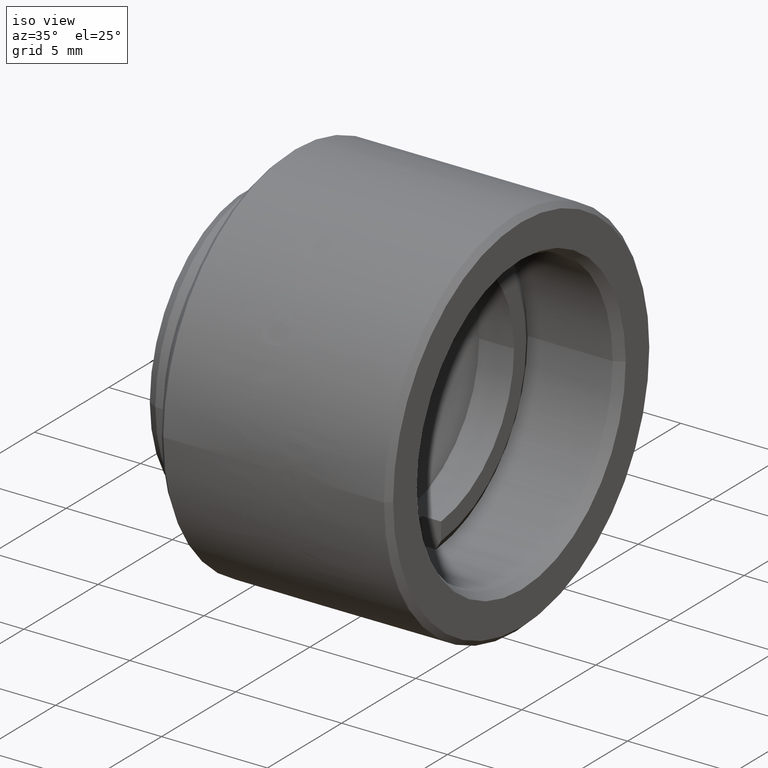
[diagram: clean part render]
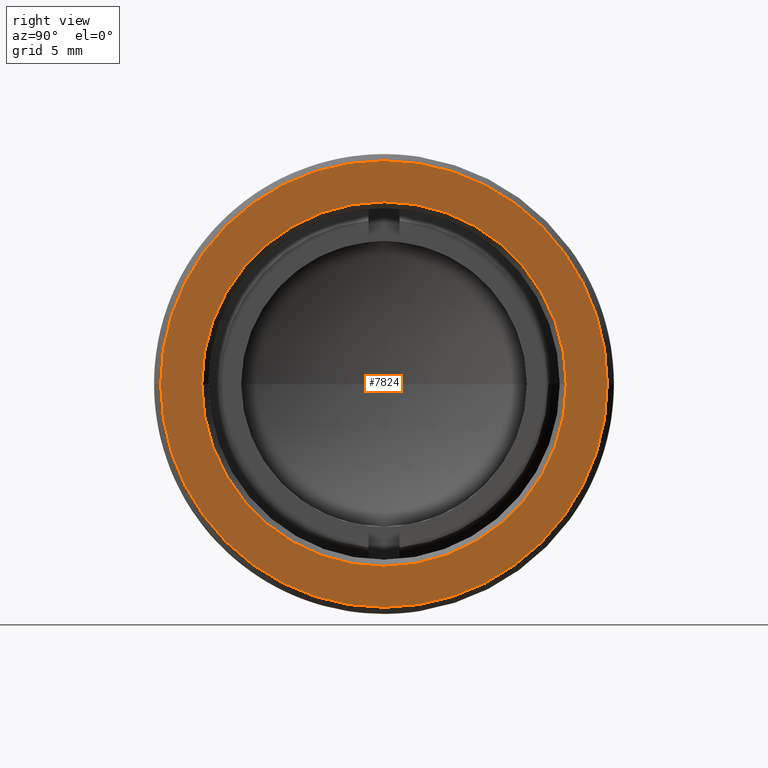
[diagram: tour spotlight — one face highlighted and labeled with its STEP entity id]
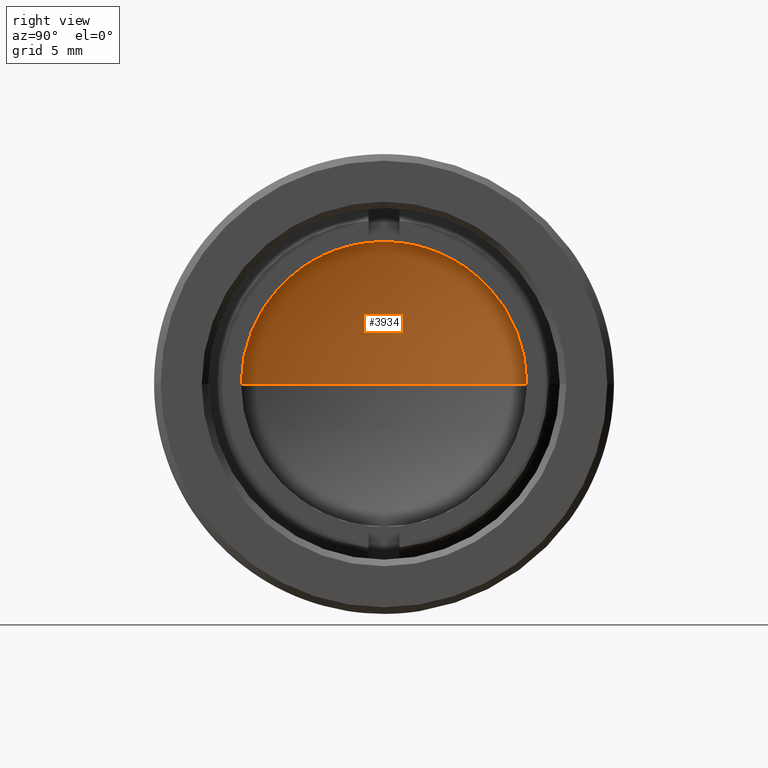
[diagram: tour spotlight — one face highlighted and labeled with its STEP entity id]
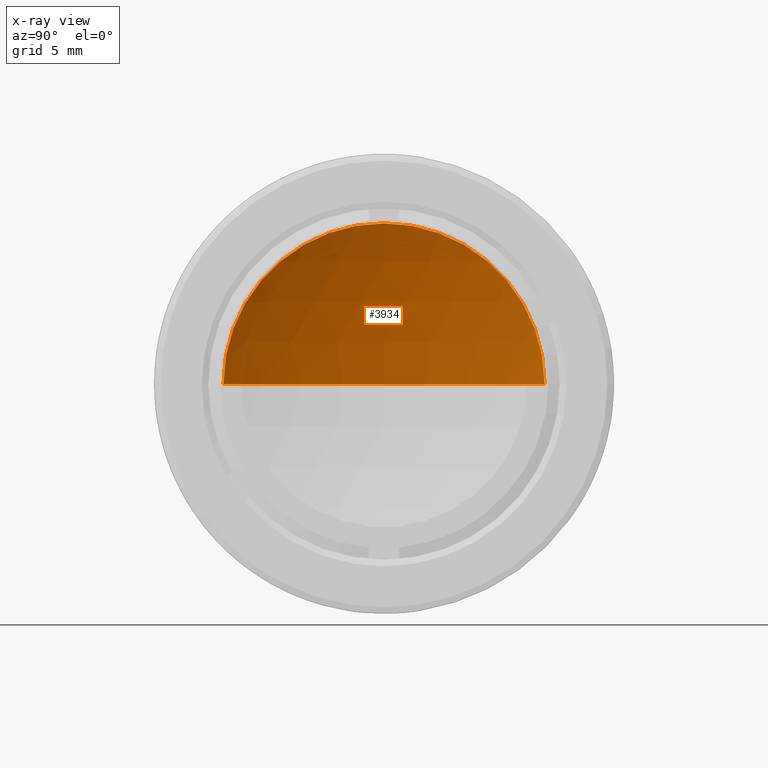
[diagram: x-ray of the same camera — body ghosted, this tour face saturated]
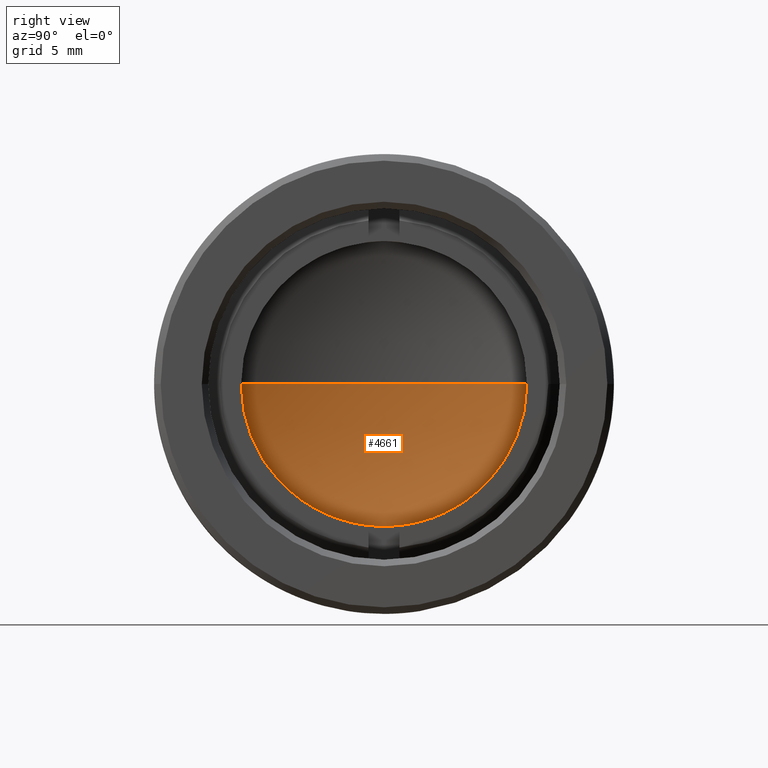
[diagram: tour spotlight — one face highlighted and labeled with its STEP entity id]
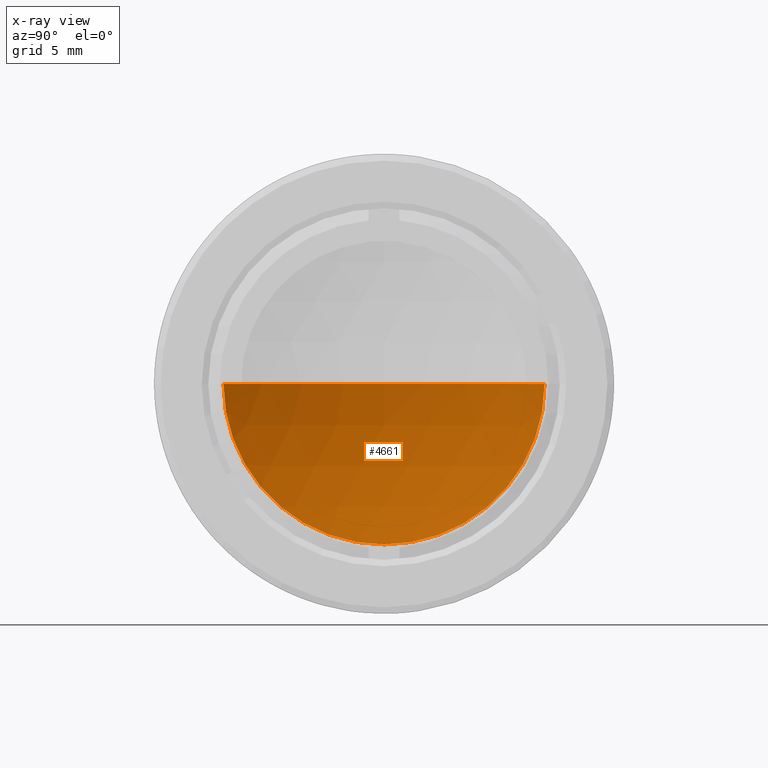
[diagram: x-ray of the same camera — body ghosted, this tour face saturated]
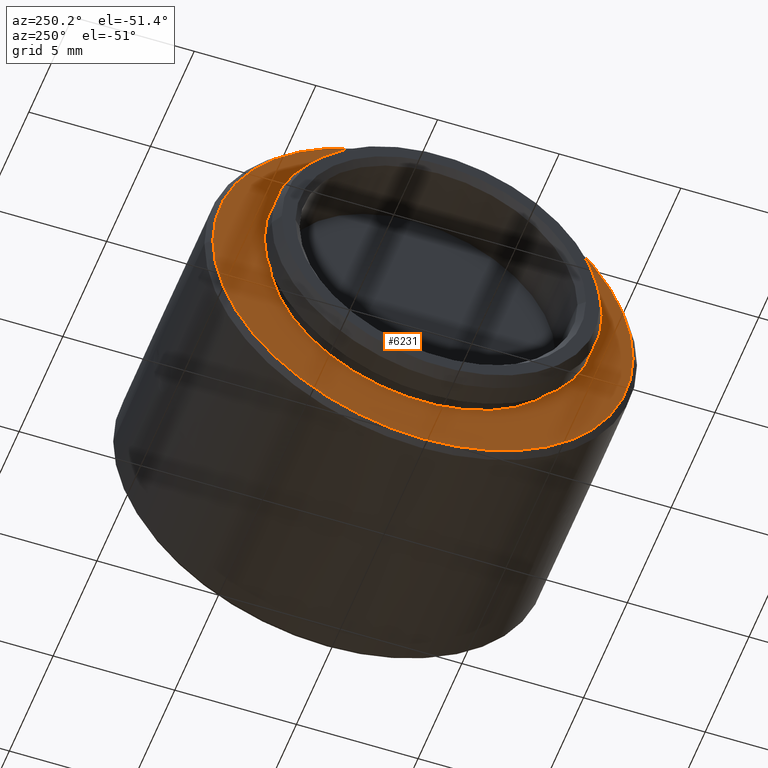
[diagram: tour spotlight — one face highlighted and labeled with its STEP entity id]
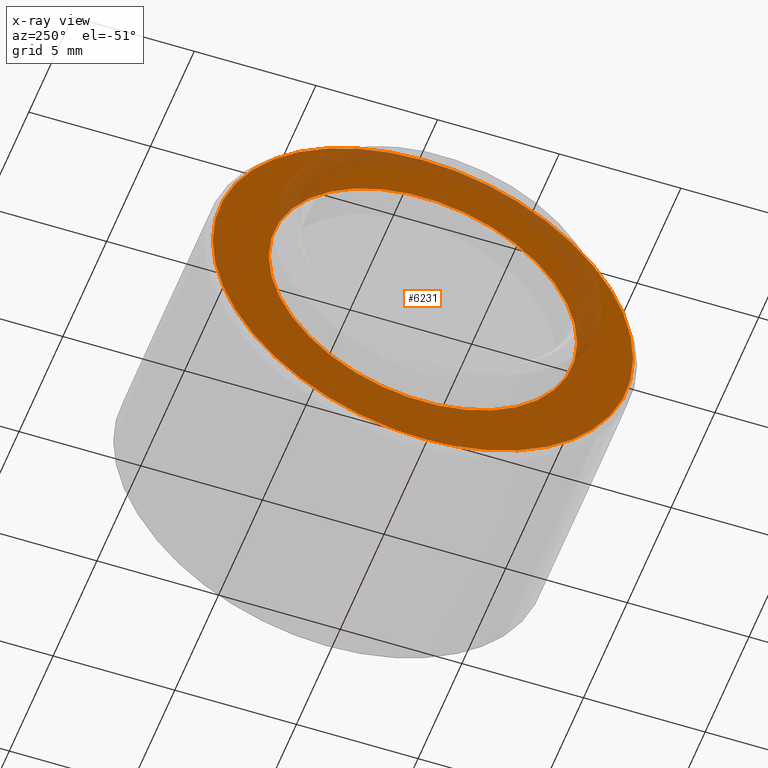
[diagram: x-ray of the same camera — body ghosted, this tour face saturated]
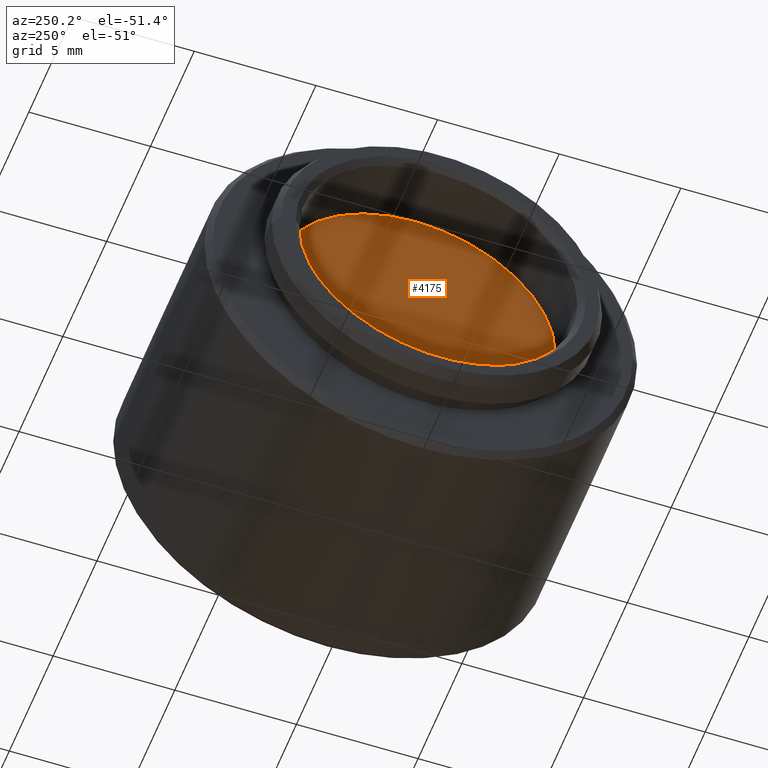
[diagram: tour spotlight — one face highlighted and labeled with its STEP entity id]
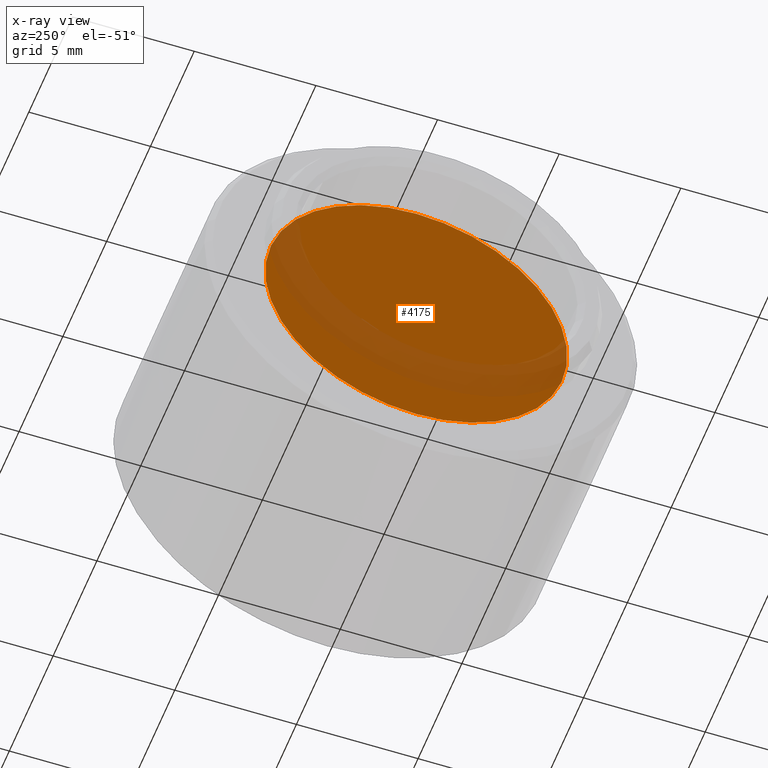
[diagram: x-ray of the same camera — body ghosted, this tour face saturated]
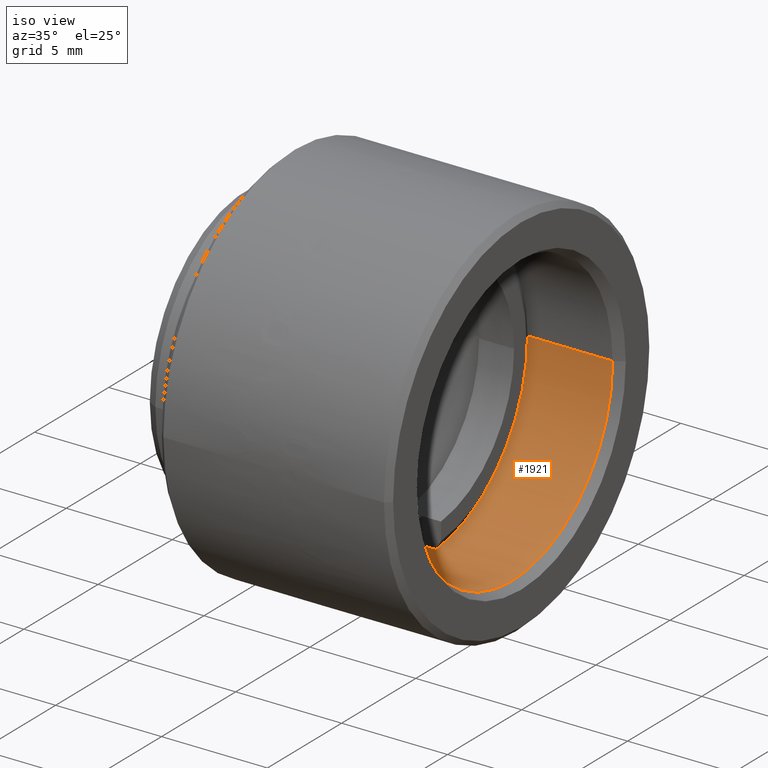
[diagram: tour spotlight — one face highlighted and labeled with its STEP entity id]
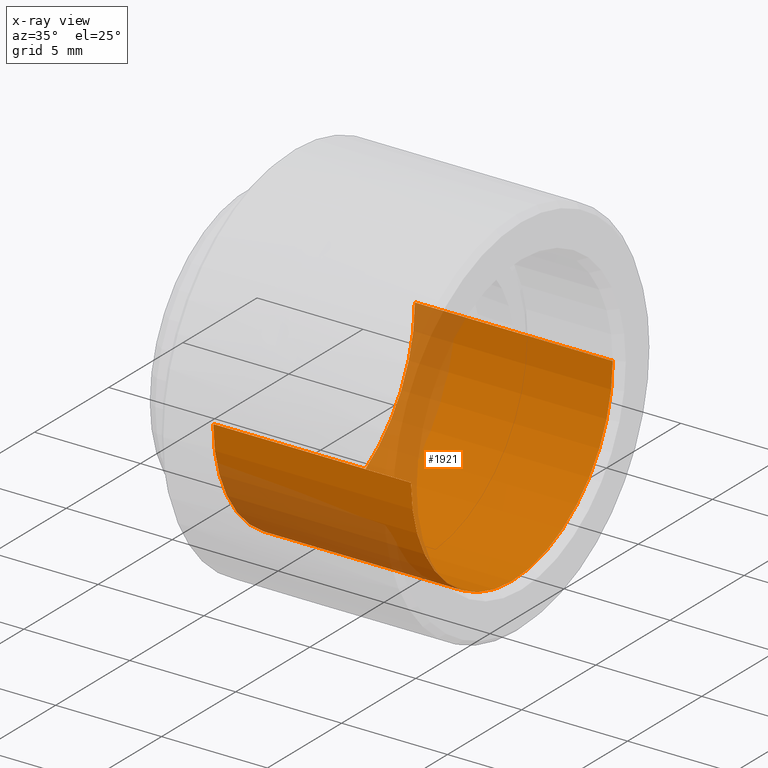
[diagram: x-ray of the same camera — body ghosted, this tour face saturated]
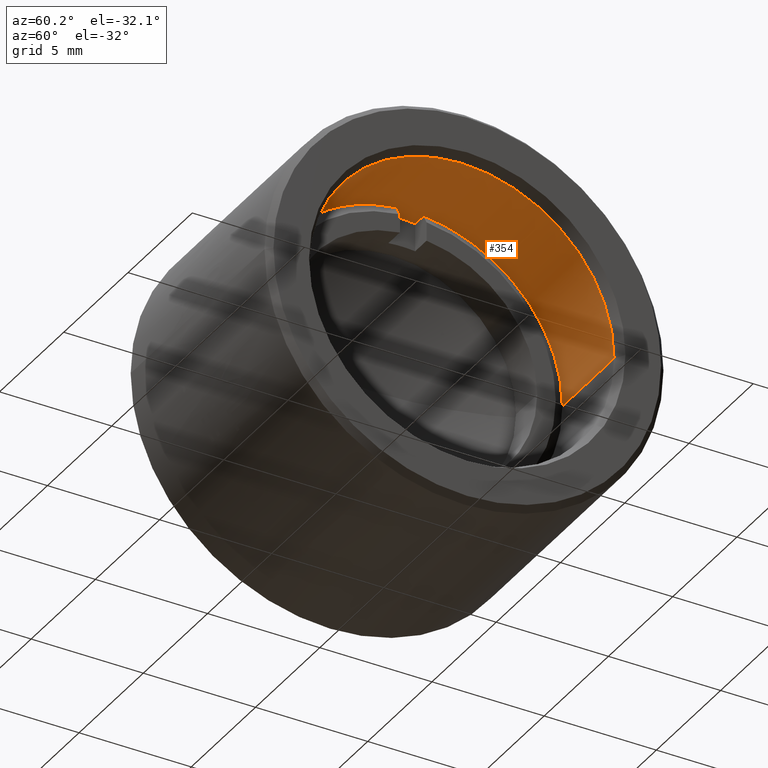
[diagram: tour spotlight — one face highlighted and labeled with its STEP entity id]
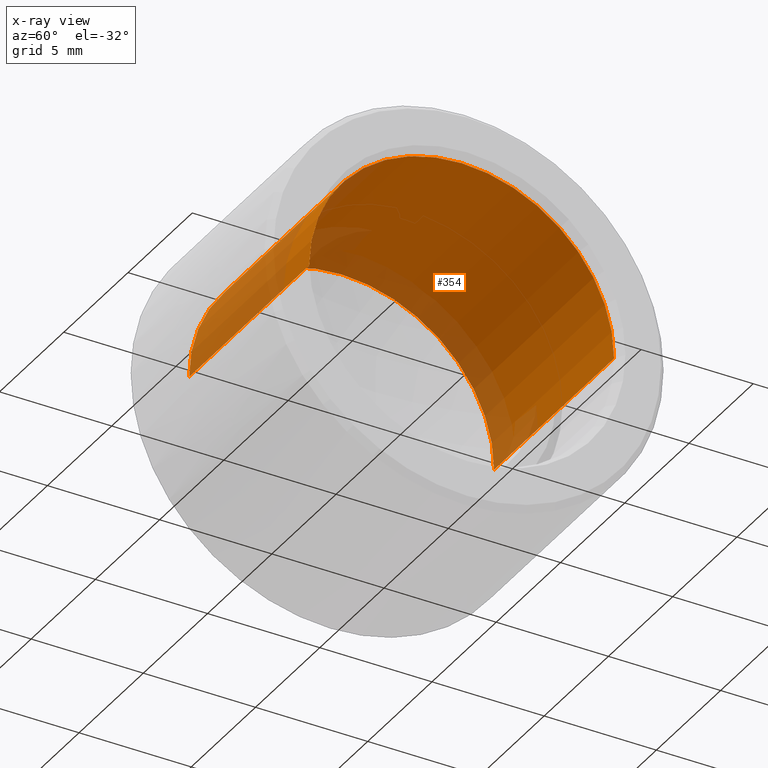
[diagram: x-ray of the same camera — body ghosted, this tour face saturated]
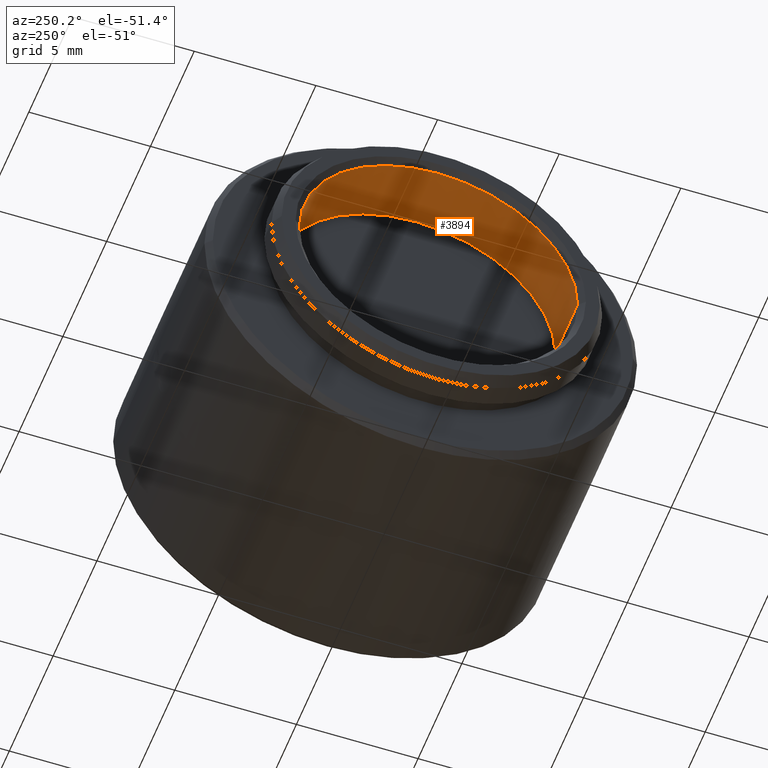
[diagram: tour spotlight — one face highlighted and labeled with its STEP entity id]
A machine part: a face-by-face anatomy tour. The part has 115 B-rep faces; the first image is the clean iso view, then the 8 largest visible faces are spotlighted one at a time (largest first), each with its STEP entity span.

Face 1 — right view, entity #7824. In plain terms, the highlighted planar face has unit normal (1, 0, -0).
Definition (entity closure, byte-faithful):
#313 = EDGE_CURVE ( 'NONE', #10013, #6372, #9238, .T. ) ;
#1106 = EDGE_CURVE ( 'NONE', #8834, #8384, #2478, .T. ) ;
#1140 = DIRECTION ( 'NONE',  ( 1.000000000000000000, 3.361775527071165300E-016, -0.0000000000000000000 ) ) ;
#1173 = EDGE_LOOP ( 'NONE', ( #4065, #3963 ) ) ;
#1302 = ORIENTED_EDGE ( 'NONE', *, *, #7415, .T. ) ;
#1697 = AXIS2_PLACEMENT_3D ( 'NONE', #9115, #4481, #9899 ) ;
#2043 = AXIS2_PLACEMENT_3D ( 'NONE', #7887, #3285, #8667 ) ;
#2068 = PLANE ( 'NONE',  #7339 ) ;
#2094 = DIRECTION ( 'NONE',  ( -3.361775527071165300E-016, 1.000000000000000000, 0.0000000000000000000 ) ) ;
#2134 = EDGE_LOOP ( 'NONE', ( #1302, #5987 ) ) ;
#2478 = CIRCLE ( 'NONE', #2043, 0.2774999999999995800 ) ;
#3285 = DIRECTION ( 'NONE',  ( -1.000000000000000000, -3.361775527071165300E-016, 0.0000000000000000000 ) ) ;
#3342 = CIRCLE ( 'NONE', #1697, 0.2774999999999995800 ) ;
#3490 = CARTESIAN_POINT ( 'NONE',  ( 0.2550000000000000600, 1.295063990098326300E-016, 0.0000000000000000000 ) ) ;
#3963 = ORIENTED_EDGE ( 'NONE', *, *, #313, .T. ) ;
#4054 = EDGE_CURVE ( 'NONE', #6372, #10013, #4915, .T. ) ;
#4065 = ORIENTED_EDGE ( 'NONE', *, *, #4054, .T. ) ;
#4258 = DIRECTION ( 'NONE',  ( -3.013067640070879900E-016, 1.000000000000000000, 0.0000000000000000000 ) ) ;
#4481 = DIRECTION ( 'NONE',  ( -1.000000000000000000, -3.361775527071165300E-016, 0.0000000000000000000 ) ) ;
#4915 = CIRCLE ( 'NONE', #9545, 0.3399999999999998600 ) ;
#5643 = CARTESIAN_POINT ( 'NONE',  ( 0.2549999999999999500, 0.3399999999999999700, 4.225031457058367200E-017 ) ) ;
#5738 = CARTESIAN_POINT ( 'NONE',  ( 0.2550000000000000600, 1.295063990098326300E-016, 0.0000000000000000000 ) ) ;
#5916 = CARTESIAN_POINT ( 'NONE',  ( 0.2549999999999999500, 0.3500000000000000900, 0.0000000000000000000 ) ) ;
#5987 = ORIENTED_EDGE ( 'NONE', *, *, #1106, .T. ) ;
#6216 = FACE_BOUND ( 'NONE', #2134, .T. ) ;
#6372 = VERTEX_POINT ( 'NONE', #7647 ) ;
#6517 = DIRECTION ( 'NONE',  ( -3.013067640070879900E-016, 1.000000000000000000, 0.0000000000000000000 ) ) ;
#6703 = DIRECTION ( 'NONE',  ( 1.000000000000000000, 3.361775527071165300E-016, -0.0000000000000000000 ) ) ;
#6774 = CARTESIAN_POINT ( 'NONE',  ( 0.2549999999999999500, 0.2774999999999997500, 0.0000000000000000000 ) ) ;
#7339 = AXIS2_PLACEMENT_3D ( 'NONE', #5916, #6703, #2094 ) ;
#7415 = EDGE_CURVE ( 'NONE', #8384, #8834, #3342, .T. ) ;
#7647 = CARTESIAN_POINT ( 'NONE',  ( 0.2550000000000001700, -0.3399999999999997500, 0.0000000000000000000 ) ) ;
#7824 = ADVANCED_FACE ( 'NONE', ( #8005, #6216 ), #2068, .T. ) ;
#7887 = CARTESIAN_POINT ( 'NONE',  ( 0.2550000000000000600, 1.295063990098326300E-016, 0.0000000000000000000 ) ) ;
#8005 = FACE_OUTER_BOUND ( 'NONE', #1173, .T. ) ;
#8384 = VERTEX_POINT ( 'NONE', #6774 ) ;
#8667 = DIRECTION ( 'NONE',  ( -3.691686477924685400E-016, 1.000000000000000000, 0.0000000000000000000 ) ) ;
#8834 = VERTEX_POINT ( 'NONE', #9929 ) ;
#8891 = DIRECTION ( 'NONE',  ( 1.000000000000000000, 3.361775527071165300E-016, -0.0000000000000000000 ) ) ;
#9115 = CARTESIAN_POINT ( 'NONE',  ( 0.2550000000000000600, 1.295063990098326300E-016, 0.0000000000000000000 ) ) ;
#9144 = AXIS2_PLACEMENT_3D ( 'NONE', #5738, #1140, #6517 ) ;
#9238 = CIRCLE ( 'NONE', #9144, 0.3399999999999998600 ) ;
#9545 = AXIS2_PLACEMENT_3D ( 'NONE', #3490, #8891, #4258 ) ;
#9899 = DIRECTION ( 'NONE',  ( -3.691686477924685400E-016, 1.000000000000000000, 0.0000000000000000000 ) ) ;
#9929 = CARTESIAN_POINT ( 'NONE',  ( 0.2550000000000001700, -0.2774999999999994100, 3.398394867633900100E-017 ) ) ;
#10013 = VERTEX_POINT ( 'NONE', #5643 ) ;

Face 2 — right view, entity #3934. An x-ray twin of the same camera follows (body ghosted, this face saturated) — the face is partly hidden behind the body. In plain terms, the highlighted spherical surface has radius 15.43 mm.
Definition (entity closure, byte-faithful):
#4 = CARTESIAN_POINT ( 'NONE',  ( 0.5805905511811022500, 2.389626336904546700E-016, 2.224073496795744500E-032 ) ) ;
#81 = CIRCLE ( 'NONE', #2183, 0.2444322300693973800 ) ;
#601 = CARTESIAN_POINT ( 'NONE',  ( 0.02445637855010202700, 5.200280855856952200E-017, -2.642661205433567500E-033 ) ) ;
#779 = DIRECTION ( 'NONE',  ( 0.0000000000000000000, 1.000000000000000000, 5.551115123125782700E-017 ) ) ;
#814 = VERTEX_POINT ( 'NONE', #7372 ) ;
#964 = CIRCLE ( 'NONE', #4934, 0.6074803149606299300 ) ;
#1049 = EDGE_CURVE ( 'NONE', #8835, #3991, #7064, .T. ) ;
#1372 = DIRECTION ( 'NONE',  ( 0.0000000000000000000, 5.551115123125785200E-017, -1.000000000000000000 ) ) ;
#1821 = FACE_OUTER_BOUND ( 'NONE', #2108, .T. ) ;
#2108 = EDGE_LOOP ( 'NONE', ( #3352, #2500, #9956, #2422 ) ) ;
#2183 = AXIS2_PLACEMENT_3D ( 'NONE', #601, #5964, #1372 ) ;
#2422 = ORIENTED_EDGE ( 'NONE', *, *, #6454, .T. ) ;
#2439 = EDGE_CURVE ( 'NONE', #3991, #814, #81, .T. ) ;
#2500 = ORIENTED_EDGE ( 'NONE', *, *, #1049, .T. ) ;
#3352 = ORIENTED_EDGE ( 'NONE', *, *, #7045, .F. ) ;
#3934 = ADVANCED_FACE ( 'NONE', ( #1821 ), #7940, .F. ) ;
#3991 = VERTEX_POINT ( 'NONE', #7965 ) ;
#4103 = CARTESIAN_POINT ( 'NONE',  ( 0.02445637855010202700, 5.200280855856952200E-017, -2.642661205433567500E-033 ) ) ;
#4387 = DIRECTION ( 'NONE',  ( -6.725178568164071600E-032, 6.695352868347746900E-017, 1.000000000000000000 ) ) ;
#4818 = DIRECTION ( 'NONE',  ( -3.372761132812975400E-016, 1.000000000000000000, 5.551115123125782700E-017 ) ) ;
#4877 = DIRECTION ( 'NONE',  ( 0.0000000000000000000, 5.551115123125785200E-017, -1.000000000000000000 ) ) ;
#4934 = AXIS2_PLACEMENT_3D ( 'NONE', #9016, #4387, #9792 ) ;
#5373 = DIRECTION ( 'NONE',  ( 2.608190929484499500E-032, 5.551115123125782700E-017, -1.000000000000000000 ) ) ;
#5964 = DIRECTION ( 'NONE',  ( 1.000000000000000000, 3.361775527071136700E-016, 4.474351226372373100E-032 ) ) ;
#6176 = AXIS2_PLACEMENT_3D ( 'NONE', #4103, #9519, #4877 ) ;
#6454 = EDGE_CURVE ( 'NONE', #814, #7505, #6717, .T. ) ;
#6717 = CIRCLE ( 'NONE', #6176, 0.2444322300693973800 ) ;
#6832 = CARTESIAN_POINT ( 'NONE',  ( -0.02688976377952761300, 7.193882925232160800E-017, -2.875195172634810100E-033 ) ) ;
#7045 = EDGE_CURVE ( 'NONE', #8835, #7505, #964, .T. ) ;
#7064 = CIRCLE ( 'NONE', #8934, 0.6074803149606299300 ) ;
#7372 = CARTESIAN_POINT ( 'NONE',  ( 0.02445637855010202700, 3.734367777542118100E-017, 0.2444322300693973800 ) ) ;
#7461 = AXIS2_PLACEMENT_3D ( 'NONE', #9453, #7878, #4818 ) ;
#7505 = VERTEX_POINT ( 'NONE', #9329 ) ;
#7878 = DIRECTION ( 'NONE',  ( -2.608190929484499000E-032, -5.551115123125782700E-017, 1.000000000000000000 ) ) ;
#7940 = SPHERICAL_SURFACE ( 'NONE', #7461, 0.6074803149606299300 ) ;
#7965 = CARTESIAN_POINT ( 'NONE',  ( 0.02445637855010199300, 0.2444322300693976000, 1.356871448917592900E-017 ) ) ;
#8835 = VERTEX_POINT ( 'NONE', #6832 ) ;
#8934 = AXIS2_PLACEMENT_3D ( 'NONE', #4, #5373, #779 ) ;
#9016 = CARTESIAN_POINT ( 'NONE',  ( 0.5805905511811022500, 2.389626336904546700E-016, 2.224073496795744500E-032 ) ) ;
#9329 = CARTESIAN_POINT ( 'NONE',  ( 0.02445637855010214900, -0.2444322300693974600, 1.636560032711777000E-017 ) ) ;
#9453 = CARTESIAN_POINT ( 'NONE',  ( 0.5805905511811022500, 2.389626336904546700E-016, 2.224073496795744500E-032 ) ) ;
#9519 = DIRECTION ( 'NONE',  ( 1.000000000000000000, 3.361775527071136700E-016, 4.474351226372373100E-032 ) ) ;
#9792 = DIRECTION ( 'NONE',  ( 0.0000000000000000000, -1.000000000000000000, 6.695352868347746900E-017 ) ) ;
#9956 = ORIENTED_EDGE ( 'NONE', *, *, #2439, .T. ) ;

Face 3 — right view, entity #4661. An x-ray twin of the same camera follows (body ghosted, this face saturated) — the face is partly hidden behind the body. In plain terms, the highlighted spherical surface has radius 15.43 mm.
Definition (entity closure, byte-faithful):
#4 = CARTESIAN_POINT ( 'NONE',  ( 0.5805905511811022500, 2.389626336904546700E-016, 2.224073496795744500E-032 ) ) ;
#336 = DIRECTION ( 'NONE',  ( -2.608190929484499000E-032, -5.551115123125782700E-017, 1.000000000000000000 ) ) ;
#779 = DIRECTION ( 'NONE',  ( 0.0000000000000000000, 1.000000000000000000, 5.551115123125782700E-017 ) ) ;
#964 = CIRCLE ( 'NONE', #4934, 0.6074803149606299300 ) ;
#1049 = EDGE_CURVE ( 'NONE', #8835, #3991, #7064, .T. ) ;
#1499 = EDGE_CURVE ( 'NONE', #7505, #5397, #7171, .T. ) ;
#1671 = ORIENTED_EDGE ( 'NONE', *, *, #1049, .F. ) ;
#1709 = ORIENTED_EDGE ( 'NONE', *, *, #7045, .T. ) ;
#2306 = DIRECTION ( 'NONE',  ( 1.000000000000000000, 3.361775527071136700E-016, 4.474351226372373100E-032 ) ) ;
#3320 = EDGE_CURVE ( 'NONE', #5397, #3991, #5696, .T. ) ;
#3991 = VERTEX_POINT ( 'NONE', #7965 ) ;
#4083 = DIRECTION ( 'NONE',  ( 1.000000000000000000, 3.361775527071136700E-016, 4.474351226372373100E-032 ) ) ;
#4244 = EDGE_LOOP ( 'NONE', ( #1671, #1709, #6078, #8817 ) ) ;
#4387 = DIRECTION ( 'NONE',  ( -6.725178568164071600E-032, 6.695352868347746900E-017, 1.000000000000000000 ) ) ;
#4661 = ADVANCED_FACE ( 'NONE', ( #7335 ), #5533, .F. ) ;
#4934 = AXIS2_PLACEMENT_3D ( 'NONE', #9016, #4387, #9792 ) ;
#5373 = DIRECTION ( 'NONE',  ( 2.608190929484499500E-032, 5.551115123125782700E-017, -1.000000000000000000 ) ) ;
#5397 = VERTEX_POINT ( 'NONE', #6389 ) ;
#5533 = SPHERICAL_SURFACE ( 'NONE', #8289, 0.6074803149606299300 ) ;
#5696 = CIRCLE ( 'NONE', #7649, 0.2444322300693973800 ) ;
#6078 = ORIENTED_EDGE ( 'NONE', *, *, #1499, .T. ) ;
#6389 = CARTESIAN_POINT ( 'NONE',  ( 0.02445637855010202700, 9.506542246990031700E-017, -0.2444322300693973800 ) ) ;
#6487 = DIRECTION ( 'NONE',  ( -3.372761132812975400E-016, 1.000000000000000000, 5.551115123125782700E-017 ) ) ;
#6668 = AXIS2_PLACEMENT_3D ( 'NONE', #8691, #4083, #9495 ) ;
#6832 = CARTESIAN_POINT ( 'NONE',  ( -0.02688976377952761300, 7.193882925232160800E-017, -2.875195172634810100E-033 ) ) ;
#6914 = CARTESIAN_POINT ( 'NONE',  ( 0.02445637855010202700, 5.200280855856952200E-017, -2.642661205433567500E-033 ) ) ;
#7045 = EDGE_CURVE ( 'NONE', #8835, #7505, #964, .T. ) ;
#7064 = CIRCLE ( 'NONE', #8934, 0.6074803149606299300 ) ;
#7171 = CIRCLE ( 'NONE', #6668, 0.2444322300693973800 ) ;
#7335 = FACE_OUTER_BOUND ( 'NONE', #4244, .T. ) ;
#7505 = VERTEX_POINT ( 'NONE', #9329 ) ;
#7649 = AXIS2_PLACEMENT_3D ( 'NONE', #6914, #2306, #7688 ) ;
#7688 = DIRECTION ( 'NONE',  ( 0.0000000000000000000, 5.551115123125785200E-017, -1.000000000000000000 ) ) ;
#7965 = CARTESIAN_POINT ( 'NONE',  ( 0.02445637855010199300, 0.2444322300693976000, 1.356871448917592900E-017 ) ) ;
#8289 = AXIS2_PLACEMENT_3D ( 'NONE', #9476, #336, #6487 ) ;
#8691 = CARTESIAN_POINT ( 'NONE',  ( 0.02445637855010202700, 5.200280855856952200E-017, -2.642661205433567500E-033 ) ) ;
#8817 = ORIENTED_EDGE ( 'NONE', *, *, #3320, .T. ) ;
#8835 = VERTEX_POINT ( 'NONE', #6832 ) ;
#8934 = AXIS2_PLACEMENT_3D ( 'NONE', #4, #5373, #779 ) ;
#9016 = CARTESIAN_POINT ( 'NONE',  ( 0.5805905511811022500, 2.389626336904546700E-016, 2.224073496795744500E-032 ) ) ;
#9329 = CARTESIAN_POINT ( 'NONE',  ( 0.02445637855010214900, -0.2444322300693974600, 1.636560032711777000E-017 ) ) ;
#9476 = CARTESIAN_POINT ( 'NONE',  ( 0.5805905511811022500, 2.389626336904546700E-016, 2.224073496795744500E-032 ) ) ;
#9495 = DIRECTION ( 'NONE',  ( 0.0000000000000000000, 5.551115123125785200E-017, -1.000000000000000000 ) ) ;
#9792 = DIRECTION ( 'NONE',  ( 0.0000000000000000000, -1.000000000000000000, 6.695352868347746900E-017 ) ) ;

Face 4 — auxiliary view, entity #6231. An x-ray twin of the same camera follows (body ghosted, this face saturated) — the face is partly hidden behind the body. In plain terms, the highlighted planar face has unit normal (-1, -0, 0).
Definition (entity closure, byte-faithful):
#126 = AXIS2_PLACEMENT_3D ( 'NONE', #6147, #1557, #6928 ) ;
#320 = VERTEX_POINT ( 'NONE', #9601 ) ;
#481 = DIRECTION ( 'NONE',  ( 3.013067640070880400E-016, -1.000000000000000000, 0.0000000000000000000 ) ) ;
#569 = AXIS2_PLACEMENT_3D ( 'NONE', #9707, #5061, #481 ) ;
#835 = ORIENTED_EDGE ( 'NONE', *, *, #2194, .T. ) ;
#1071 = CIRCLE ( 'NONE', #3723, 0.3399999999999998000 ) ;
#1157 = DIRECTION ( 'NONE',  ( -1.000000000000000000, -3.361775527071165300E-016, 0.0000000000000000000 ) ) ;
#1396 = VERTEX_POINT ( 'NONE', #3601 ) ;
#1445 = ORIENTED_EDGE ( 'NONE', *, *, #6581, .T. ) ;
#1513 = VERTEX_POINT ( 'NONE', #2550 ) ;
#1557 = DIRECTION ( 'NONE',  ( 1.000000000000000000, 3.361775527071165300E-016, -0.0000000000000000000 ) ) ;
#2040 = DIRECTION ( 'NONE',  ( -1.000000000000000000, -3.361775527071165300E-016, 0.0000000000000000000 ) ) ;
#2152 = CIRCLE ( 'NONE', #9797, 0.2494999999999999200 ) ;
#2173 = DIRECTION ( 'NONE',  ( 1.000000000000000000, 3.361775527071165300E-016, -0.0000000000000000000 ) ) ;
#2194 = EDGE_CURVE ( 'NONE', #1513, #320, #4876, .T. ) ;
#2550 = CARTESIAN_POINT ( 'NONE',  ( -0.1750000000000001300, -0.2494999999999999200, 3.055493763872645600E-017 ) ) ;
#2879 = CIRCLE ( 'NONE', #569, 0.3399999999999998000 ) ;
#3191 = EDGE_LOOP ( 'NONE', ( #1445, #835 ) ) ;
#3245 = CARTESIAN_POINT ( 'NONE',  ( -0.1750000000000002400, 0.3399999999999998000, 0.0000000000000000000 ) ) ;
#3530 = PLANE ( 'NONE',  #4105 ) ;
#3601 = CARTESIAN_POINT ( 'NONE',  ( -0.1750000000000000400, -0.3399999999999998000, 4.225031457058367200E-017 ) ) ;
#3723 = AXIS2_PLACEMENT_3D ( 'NONE', #5750, #1157, #6524 ) ;
#4070 = FACE_BOUND ( 'NONE', #3191, .T. ) ;
#4104 = EDGE_CURVE ( 'NONE', #8576, #1396, #2879, .T. ) ;
#4105 = AXIS2_PLACEMENT_3D ( 'NONE', #4310, #2040, #7419 ) ;
#4149 = ORIENTED_EDGE ( 'NONE', *, *, #4104, .T. ) ;
#4192 = ORIENTED_EDGE ( 'NONE', *, *, #7690, .T. ) ;
#4310 = CARTESIAN_POINT ( 'NONE',  ( -0.1750000000000002400, 0.3500000000000000300, 0.0000000000000000000 ) ) ;
#4876 = CIRCLE ( 'NONE', #126, 0.2494999999999999200 ) ;
#4914 = EDGE_LOOP ( 'NONE', ( #4149, #4192 ) ) ;
#5061 = DIRECTION ( 'NONE',  ( -1.000000000000000000, -3.361775527071165300E-016, 0.0000000000000000000 ) ) ;
#5750 = CARTESIAN_POINT ( 'NONE',  ( -0.1750000000000001600, -1.504994865422755800E-017, 0.0000000000000000000 ) ) ;
#6147 = CARTESIAN_POINT ( 'NONE',  ( -0.1750000000000001800, -1.504994865422759200E-017, 0.0000000000000000000 ) ) ;
#6231 = ADVANCED_FACE ( 'NONE', ( #8148, #4070 ), #3530, .T. ) ;
#6524 = DIRECTION ( 'NONE',  ( 3.013067640070880400E-016, -1.000000000000000000, 0.0000000000000000000 ) ) ;
#6581 = EDGE_CURVE ( 'NONE', #320, #1513, #2152, .T. ) ;
#6773 = CARTESIAN_POINT ( 'NONE',  ( -0.1750000000000001800, -1.504994865422759200E-017, 0.0000000000000000000 ) ) ;
#6928 = DIRECTION ( 'NONE',  ( -2.737322638942148700E-016, 1.000000000000000000, 0.0000000000000000000 ) ) ;
#7419 = DIRECTION ( 'NONE',  ( 3.361775527071165300E-016, -1.000000000000000000, 0.0000000000000000000 ) ) ;
#7548 = DIRECTION ( 'NONE',  ( -2.737322638942148700E-016, 1.000000000000000000, 0.0000000000000000000 ) ) ;
#7690 = EDGE_CURVE ( 'NONE', #1396, #8576, #1071, .T. ) ;
#8148 = FACE_OUTER_BOUND ( 'NONE', #4914, .T. ) ;
#8576 = VERTEX_POINT ( 'NONE', #3245 ) ;
#9601 = CARTESIAN_POINT ( 'NONE',  ( -0.1750000000000002400, 0.2494999999999999200, 0.0000000000000000000 ) ) ;
#9707 = CARTESIAN_POINT ( 'NONE',  ( -0.1750000000000001600, -1.504994865422755800E-017, 0.0000000000000000000 ) ) ;
#9797 = AXIS2_PLACEMENT_3D ( 'NONE', #6773, #2173, #7548 ) ;

Face 5 — auxiliary view, entity #4175. An x-ray twin of the same camera follows (body ghosted, this face saturated) — the face is partly hidden behind the body. In plain terms, the highlighted planar face has unit normal (1, 0, 0).
Definition (entity closure, byte-faithful):
#395 = EDGE_CURVE ( 'NONE', #2831, #4038, #6945, .T. ) ;
#651 = DIRECTION ( 'NONE',  ( 1.000000000000000000, 3.361775527071136200E-016, 4.331350625703535000E-032 ) ) ;
#663 = ORIENTED_EDGE ( 'NONE', *, *, #395, .F. ) ;
#1201 = AXIS2_PLACEMENT_3D ( 'NONE', #1241, #6621, #2019 ) ;
#1241 = CARTESIAN_POINT ( 'NONE',  ( -0.1449999999999999600, -4.964622073013980000E-018, -1.022473475725626700E-032 ) ) ;
#2019 = DIRECTION ( 'NONE',  ( 0.0000000000000000000, 5.551115123125782700E-017, -1.000000000000000000 ) ) ;
#2523 = DIRECTION ( 'NONE',  ( 1.000000000000000000, 3.361775527071136700E-016, 4.474351226372373100E-032 ) ) ;
#2627 = AXIS2_PLACEMENT_3D ( 'NONE', #5240, #651, #6024 ) ;
#2831 = VERTEX_POINT ( 'NONE', #6630 ) ;
#3420 = EDGE_LOOP ( 'NONE', ( #3494, #663 ) ) ;
#3494 = ORIENTED_EDGE ( 'NONE', *, *, #5059, .F. ) ;
#4038 = VERTEX_POINT ( 'NONE', #4998 ) ;
#4175 = ADVANCED_FACE ( 'NONE', ( #7231 ), #9884, .F. ) ;
#4482 = AXIS2_PLACEMENT_3D ( 'NONE', #7135, #2523, #7888 ) ;
#4998 = CARTESIAN_POINT ( 'NONE',  ( -0.1449999999999999600, 8.604092416161940000E-018, -0.2444322300693972900 ) ) ;
#5059 = EDGE_CURVE ( 'NONE', #4038, #2831, #7700, .T. ) ;
#5240 = CARTESIAN_POINT ( 'NONE',  ( -0.1449999999999999600, 1.673187633707691400E-017, -9.020337152824965400E-033 ) ) ;
#6024 = DIRECTION ( 'NONE',  ( 2.465190328815661900E-032, 5.551115123125782700E-017, -1.000000000000000000 ) ) ;
#6621 = DIRECTION ( 'NONE',  ( 1.000000000000000000, 3.361775527071136700E-016, 4.474351226372373100E-032 ) ) ;
#6630 = CARTESIAN_POINT ( 'NONE',  ( -0.1449999999999999600, 1.252324881063271700E-017, 0.2444322300693972900 ) ) ;
#6945 = CIRCLE ( 'NONE', #1201, 0.2444322300693972900 ) ;
#7135 = CARTESIAN_POINT ( 'NONE',  ( -0.1449999999999999600, -4.964622073013980000E-018, -1.022473475725626700E-032 ) ) ;
#7231 = FACE_OUTER_BOUND ( 'NONE', #3420, .T. ) ;
#7700 = CIRCLE ( 'NONE', #4482, 0.2444322300693972900 ) ;
#7888 = DIRECTION ( 'NONE',  ( 0.0000000000000000000, 5.551115123125782700E-017, -1.000000000000000000 ) ) ;
#9884 = PLANE ( 'NONE',  #2627 ) ;

Face 6 — iso view, entity #1921. An x-ray twin of the same camera follows (body ghosted, this face saturated) — the face is partly hidden behind the body. In plain terms, the highlighted cylindrical surface (partial cylindrical patch) has radius 6.7945 mm, axis along (1, 0, -0).
Definition (entity closure, byte-faithful):
#965 = ORIENTED_EDGE ( 'NONE', *, *, #6232, .T. ) ;
#1164 = VERTEX_POINT ( 'NONE', #2573 ) ;
#1643 = FACE_OUTER_BOUND ( 'NONE', #4254, .T. ) ;
#1804 = VECTOR ( 'NONE', #4340, 39.37007874015748100 ) ;
#1825 = CARTESIAN_POINT ( 'NONE',  ( 0.2376794919243119500, 0.2675000000000001300, 0.0000000000000000000 ) ) ;
#1880 = EDGE_CURVE ( 'NONE', #5817, #1164, #9817, .T. ) ;
#1921 = ADVANCED_FACE ( 'NONE', ( #1643 ), #3548, .F. ) ;
#2238 = DIRECTION ( 'NONE',  ( -3.829693449062050900E-016, 1.000000000000000000, 0.0000000000000000000 ) ) ;
#2522 = LINE ( 'NONE', #4316, #8403 ) ;
#2573 = CARTESIAN_POINT ( 'NONE',  ( -0.1300000000000000600, 0.2675000000000000200, 0.0000000000000000000 ) ) ;
#2717 = CARTESIAN_POINT ( 'NONE',  ( 0.2376794919243120600, 1.236836329933039700E-016, 0.0000000000000000000 ) ) ;
#3486 = DIRECTION ( 'NONE',  ( -3.829693449062050900E-016, 1.000000000000000000, 0.0000000000000000000 ) ) ;
#3548 = CYLINDRICAL_SURFACE ( 'NONE', #7025, 0.2675000000000000200 ) ;
#3735 = CARTESIAN_POINT ( 'NONE',  ( -0.1299999999999999800, 7.804121759273524300E-020, 0.0000000000000000000 ) ) ;
#3765 = CARTESIAN_POINT ( 'NONE',  ( 0.2550000000000000600, 1.295063990098326300E-016, 0.0000000000000000000 ) ) ;
#3929 = ORIENTED_EDGE ( 'NONE', *, *, #1880, .F. ) ;
#4254 = EDGE_LOOP ( 'NONE', ( #3929, #965, #7523, #6998 ) ) ;
#4316 = CARTESIAN_POINT ( 'NONE',  ( 0.2550000000000000000, 0.2675000000000001300, 0.0000000000000000000 ) ) ;
#4340 = DIRECTION ( 'NONE',  ( 1.000000000000000000, 3.361775527071165300E-016, -0.0000000000000000000 ) ) ;
#4414 = AXIS2_PLACEMENT_3D ( 'NONE', #3735, #9147, #4508 ) ;
#4508 = DIRECTION ( 'NONE',  ( -3.191411207551709100E-016, 1.000000000000000000, 0.0000000000000000000 ) ) ;
#5314 = DIRECTION ( 'NONE',  ( 1.000000000000000000, 3.361775527071165300E-016, -0.0000000000000000000 ) ) ;
#5764 = VERTEX_POINT ( 'NONE', #1825 ) ;
#5787 = DIRECTION ( 'NONE',  ( 1.000000000000000000, 3.361775527071165300E-016, -0.0000000000000000000 ) ) ;
#5817 = VERTEX_POINT ( 'NONE', #9534 ) ;
#5913 = EDGE_CURVE ( 'NONE', #1164, #5764, #2522, .T. ) ;
#6232 = EDGE_CURVE ( 'NONE', #5817, #6267, #7694, .T. ) ;
#6267 = VERTEX_POINT ( 'NONE', #9783 ) ;
#6998 = ORIENTED_EDGE ( 'NONE', *, *, #5913, .F. ) ;
#7025 = AXIS2_PLACEMENT_3D ( 'NONE', #3765, #5314, #2238 ) ;
#7523 = ORIENTED_EDGE ( 'NONE', *, *, #9693, .T. ) ;
#7694 = LINE ( 'NONE', #8965, #1804 ) ;
#8081 = DIRECTION ( 'NONE',  ( 1.000000000000000000, 3.361775527071170300E-016, 0.0000000000000000000 ) ) ;
#8403 = VECTOR ( 'NONE', #5787, 39.37007874015748100 ) ;
#8826 = AXIS2_PLACEMENT_3D ( 'NONE', #2717, #8081, #3486 ) ;
#8965 = CARTESIAN_POINT ( 'NONE',  ( 0.2550000000000001700, -0.2674999999999999000, 3.275930187719170000E-017 ) ) ;
#9147 = DIRECTION ( 'NONE',  ( 1.000000000000000000, 3.361775527071165300E-016, -0.0000000000000000000 ) ) ;
#9372 = CIRCLE ( 'NONE', #8826, 0.2675000000000000200 ) ;
#9534 = CARTESIAN_POINT ( 'NONE',  ( -0.1299999999999998900, -0.2675000000000000200, 3.275930187719170600E-017 ) ) ;
#9693 = EDGE_CURVE ( 'NONE', #6267, #5764, #9372, .T. ) ;
#9783 = CARTESIAN_POINT ( 'NONE',  ( 0.2376794919243121500, -0.2674999999999999000, 3.275930187719170000E-017 ) ) ;
#9817 = CIRCLE ( 'NONE', #4414, 0.2675000000000000200 ) ;

Face 7 — auxiliary view, entity #354. An x-ray twin of the same camera follows (body ghosted, this face saturated) — the face is partly hidden behind the body. In plain terms, the highlighted cylindrical surface (partial cylindrical patch) has radius 6.7945 mm, axis along (1, 0, -0).
Definition (entity closure, byte-faithful):
#309 = CIRCLE ( 'NONE', #5813, 0.2675000000000000200 ) ;
#354 = ADVANCED_FACE ( 'NONE', ( #7186 ), #1043, .F. ) ;
#610 = ORIENTED_EDGE ( 'NONE', *, *, #6232, .F. ) ;
#669 = EDGE_CURVE ( 'NONE', #5764, #6267, #309, .T. ) ;
#1043 = CYLINDRICAL_SURFACE ( 'NONE', #2232, 0.2675000000000000200 ) ;
#1164 = VERTEX_POINT ( 'NONE', #2573 ) ;
#1228 = CARTESIAN_POINT ( 'NONE',  ( 0.2376794919243120600, 1.236836329933039700E-016, 0.0000000000000000000 ) ) ;
#1412 = EDGE_LOOP ( 'NONE', ( #610, #4980, #1416, #6123 ) ) ;
#1416 = ORIENTED_EDGE ( 'NONE', *, *, #5913, .T. ) ;
#1804 = VECTOR ( 'NONE', #4340, 39.37007874015748100 ) ;
#1825 = CARTESIAN_POINT ( 'NONE',  ( 0.2376794919243119500, 0.2675000000000001300, 0.0000000000000000000 ) ) ;
#1925 = DIRECTION ( 'NONE',  ( -3.829693449062050900E-016, 1.000000000000000000, 0.0000000000000000000 ) ) ;
#2002 = DIRECTION ( 'NONE',  ( -3.829693449062050900E-016, 1.000000000000000000, 0.0000000000000000000 ) ) ;
#2232 = AXIS2_PLACEMENT_3D ( 'NONE', #4221, #4987, #1925 ) ;
#2522 = LINE ( 'NONE', #4316, #8403 ) ;
#2573 = CARTESIAN_POINT ( 'NONE',  ( -0.1300000000000000600, 0.2675000000000000200, 0.0000000000000000000 ) ) ;
#3967 = DIRECTION ( 'NONE',  ( 1.000000000000000000, 3.361775527071165300E-016, -0.0000000000000000000 ) ) ;
#4221 = CARTESIAN_POINT ( 'NONE',  ( 0.2550000000000000600, 1.295063990098326300E-016, 0.0000000000000000000 ) ) ;
#4316 = CARTESIAN_POINT ( 'NONE',  ( 0.2550000000000000000, 0.2675000000000001300, 0.0000000000000000000 ) ) ;
#4340 = DIRECTION ( 'NONE',  ( 1.000000000000000000, 3.361775527071165300E-016, -0.0000000000000000000 ) ) ;
#4980 = ORIENTED_EDGE ( 'NONE', *, *, #5679, .F. ) ;
#4987 = DIRECTION ( 'NONE',  ( 1.000000000000000000, 3.361775527071165300E-016, -0.0000000000000000000 ) ) ;
#5522 = CIRCLE ( 'NONE', #7395, 0.2675000000000000200 ) ;
#5679 = EDGE_CURVE ( 'NONE', #1164, #5817, #5522, .T. ) ;
#5764 = VERTEX_POINT ( 'NONE', #1825 ) ;
#5787 = DIRECTION ( 'NONE',  ( 1.000000000000000000, 3.361775527071165300E-016, -0.0000000000000000000 ) ) ;
#5813 = AXIS2_PLACEMENT_3D ( 'NONE', #1228, #6603, #2002 ) ;
#5817 = VERTEX_POINT ( 'NONE', #9534 ) ;
#5913 = EDGE_CURVE ( 'NONE', #1164, #5764, #2522, .T. ) ;
#6123 = ORIENTED_EDGE ( 'NONE', *, *, #669, .T. ) ;
#6232 = EDGE_CURVE ( 'NONE', #5817, #6267, #7694, .T. ) ;
#6267 = VERTEX_POINT ( 'NONE', #9783 ) ;
#6603 = DIRECTION ( 'NONE',  ( 1.000000000000000000, 3.361775527071170300E-016, 0.0000000000000000000 ) ) ;
#7186 = FACE_OUTER_BOUND ( 'NONE', #1412, .T. ) ;
#7395 = AXIS2_PLACEMENT_3D ( 'NONE', #8579, #3967, #9378 ) ;
#7694 = LINE ( 'NONE', #8965, #1804 ) ;
#8403 = VECTOR ( 'NONE', #5787, 39.37007874015748100 ) ;
#8579 = CARTESIAN_POINT ( 'NONE',  ( -0.1299999999999999800, 7.804121759273524300E-020, 0.0000000000000000000 ) ) ;
#8965 = CARTESIAN_POINT ( 'NONE',  ( 0.2550000000000001700, -0.2674999999999999000, 3.275930187719170000E-017 ) ) ;
#9378 = DIRECTION ( 'NONE',  ( -3.191411207551709100E-016, 1.000000000000000000, 0.0000000000000000000 ) ) ;
#9534 = CARTESIAN_POINT ( 'NONE',  ( -0.1299999999999998900, -0.2675000000000000200, 3.275930187719170600E-017 ) ) ;
#9783 = CARTESIAN_POINT ( 'NONE',  ( 0.2376794919243121500, -0.2674999999999999000, 3.275930187719170000E-017 ) ) ;

Face 8 — auxiliary view, entity #3894. In plain terms, the highlighted cylindrical surface (partial cylindrical patch) has radius 5.715 mm, axis along (1, 0, -0).
Definition (entity closure, byte-faithful):
#256 = AXIS2_PLACEMENT_3D ( 'NONE', #537, #5906, #1321 ) ;
#405 = CARTESIAN_POINT ( 'NONE',  ( -0.2450000000000001900, 0.2249999999999999500, 0.0000000000000000000 ) ) ;
#537 = CARTESIAN_POINT ( 'NONE',  ( -0.2450000000000001100, -3.858237734372570500E-017, 0.0000000000000000000 ) ) ;
#940 = VECTOR ( 'NONE', #9390, 39.37007874015748100 ) ;
#951 = EDGE_LOOP ( 'NONE', ( #8218, #9114, #3103, #1100 ) ) ;
#1100 = ORIENTED_EDGE ( 'NONE', *, *, #8527, .T. ) ;
#1131 = CARTESIAN_POINT ( 'NONE',  ( -0.1449999999999998800, -0.2249999999999999800, 2.755455298081544500E-017 ) ) ;
#1321 = DIRECTION ( 'NONE',  ( 3.035386659626959600E-016, -1.000000000000000000, 0.0000000000000000000 ) ) ;
#2282 = LINE ( 'NONE', #2779, #6131 ) ;
#2779 = CARTESIAN_POINT ( 'NONE',  ( 0.2550000000000000000, 0.2250000000000001200, 0.0000000000000000000 ) ) ;
#2939 = CIRCLE ( 'NONE', #256, 0.2249999999999999800 ) ;
#3103 = ORIENTED_EDGE ( 'NONE', *, *, #4897, .T. ) ;
#3208 = CARTESIAN_POINT ( 'NONE',  ( -0.1449999999999999600, -4.964622073014010000E-018, 0.0000000000000000000 ) ) ;
#3254 = DIRECTION ( 'NONE',  ( -3.035386659626959600E-016, 1.000000000000000000, 0.0000000000000000000 ) ) ;
#3538 = EDGE_CURVE ( 'NONE', #6569, #4282, #2939, .T. ) ;
#3848 = CYLINDRICAL_SURFACE ( 'NONE', #6964, 0.2249999999999999800 ) ;
#3894 = ADVANCED_FACE ( 'NONE', ( #7711 ), #3848, .F. ) ;
#3976 = DIRECTION ( 'NONE',  ( -3.035386659626959600E-016, 1.000000000000000000, 0.0000000000000000000 ) ) ;
#4282 = VERTEX_POINT ( 'NONE', #405 ) ;
#4788 = DIRECTION ( 'NONE',  ( 1.000000000000000000, 3.361775527071165300E-016, -0.0000000000000000000 ) ) ;
#4897 = EDGE_CURVE ( 'NONE', #4282, #7384, #2282, .T. ) ;
#5906 = DIRECTION ( 'NONE',  ( -1.000000000000000000, -3.361775527071168800E-016, -0.0000000000000000000 ) ) ;
#6010 = DIRECTION ( 'NONE',  ( 1.000000000000000000, 3.361775527071165300E-016, -0.0000000000000000000 ) ) ;
#6131 = VECTOR ( 'NONE', #6010, 39.37007874015748100 ) ;
#6569 = VERTEX_POINT ( 'NONE', #9035 ) ;
#6964 = AXIS2_PLACEMENT_3D ( 'NONE', #8629, #4788, #3254 ) ;
#7050 = CARTESIAN_POINT ( 'NONE',  ( 0.2550000000000001700, -0.2249999999999998700, 2.755455298081544500E-017 ) ) ;
#7159 = AXIS2_PLACEMENT_3D ( 'NONE', #3208, #8586, #3976 ) ;
#7305 = VERTEX_POINT ( 'NONE', #1131 ) ;
#7384 = VERTEX_POINT ( 'NONE', #9865 ) ;
#7711 = FACE_OUTER_BOUND ( 'NONE', #951, .T. ) ;
#7797 = CIRCLE ( 'NONE', #7159, 0.2249999999999999800 ) ;
#8051 = EDGE_CURVE ( 'NONE', #6569, #7305, #9110, .T. ) ;
#8218 = ORIENTED_EDGE ( 'NONE', *, *, #8051, .F. ) ;
#8527 = EDGE_CURVE ( 'NONE', #7384, #7305, #7797, .T. ) ;
#8586 = DIRECTION ( 'NONE',  ( 1.000000000000000000, 3.361775527071165300E-016, -0.0000000000000000000 ) ) ;
#8629 = CARTESIAN_POINT ( 'NONE',  ( 0.2550000000000000600, 1.295063990098326300E-016, 0.0000000000000000000 ) ) ;
#9035 = CARTESIAN_POINT ( 'NONE',  ( -0.2450000000000000500, -0.2250000000000000300, 2.755455298081545400E-017 ) ) ;
#9110 = LINE ( 'NONE', #7050, #940 ) ;
#9114 = ORIENTED_EDGE ( 'NONE', *, *, #3538, .T. ) ;
#9390 = DIRECTION ( 'NONE',  ( 1.000000000000000000, 3.361775527071165300E-016, -0.0000000000000000000 ) ) ;
#9865 = CARTESIAN_POINT ( 'NONE',  ( -0.1450000000000000200, 0.2249999999999999800, 0.0000000000000000000 ) ) ;